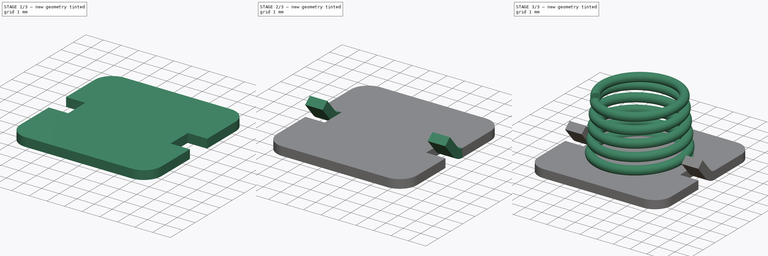
[diagram: build sequence overview — one tinted view per stage of 3, left to right]
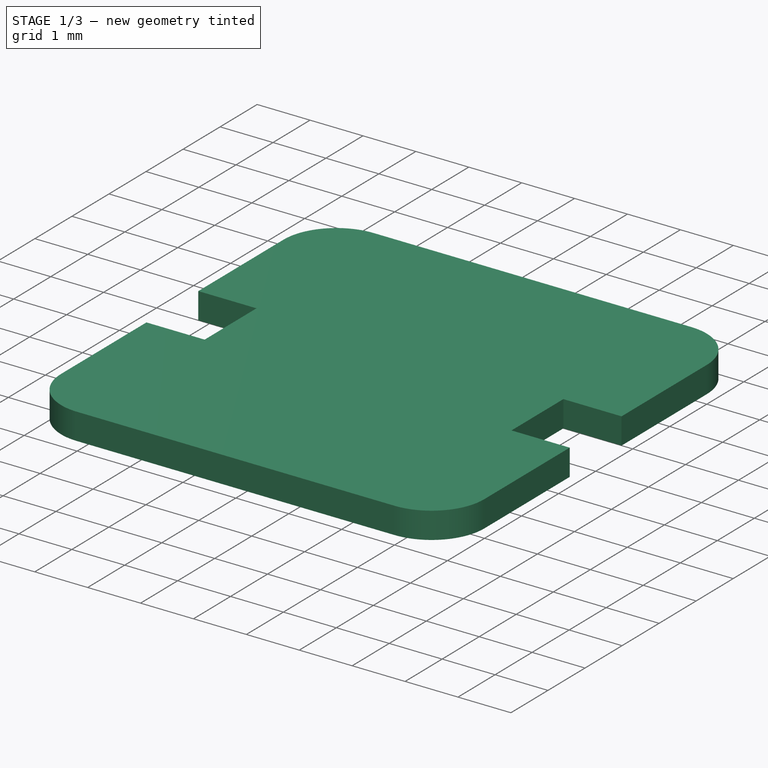
[diagram: stage 1 of 3 — iso view after this stage's code; geometry added in this stage tinted green]
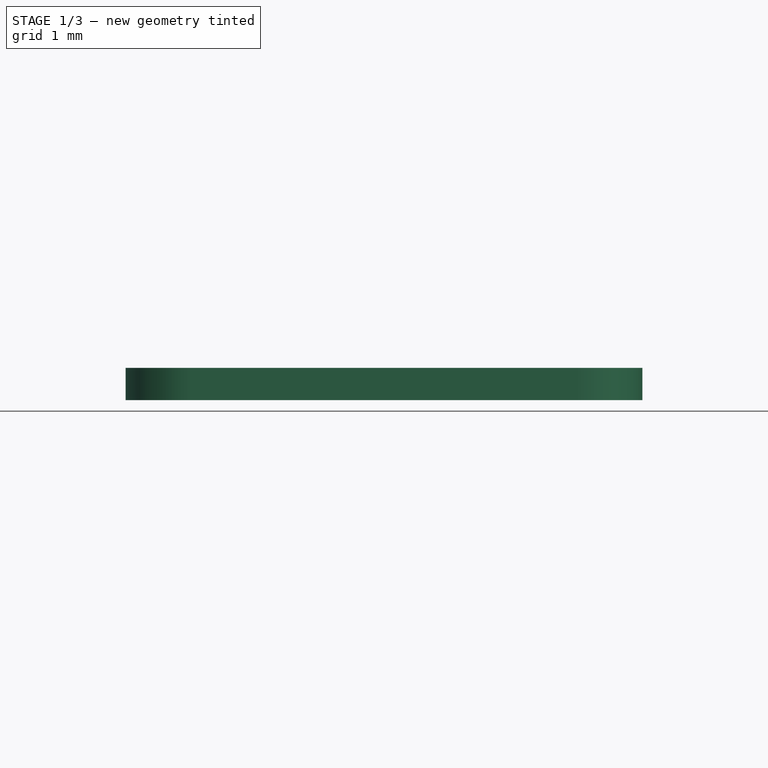
[diagram: stage 1 of 3 — front view after this stage's code; geometry added in this stage tinted green]
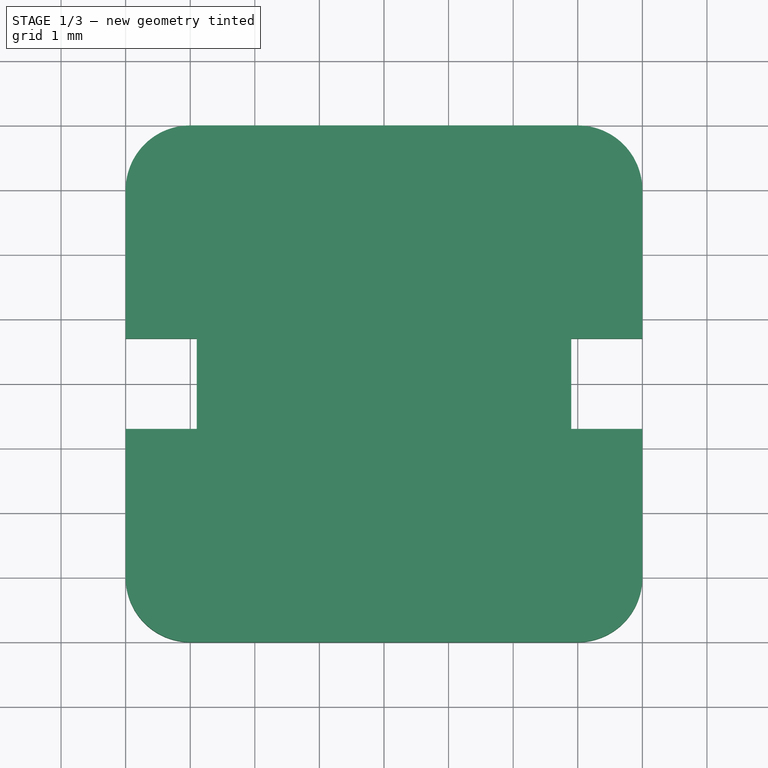
[diagram: stage 1 of 3 — top view after this stage's code; geometry added in this stage tinted green]
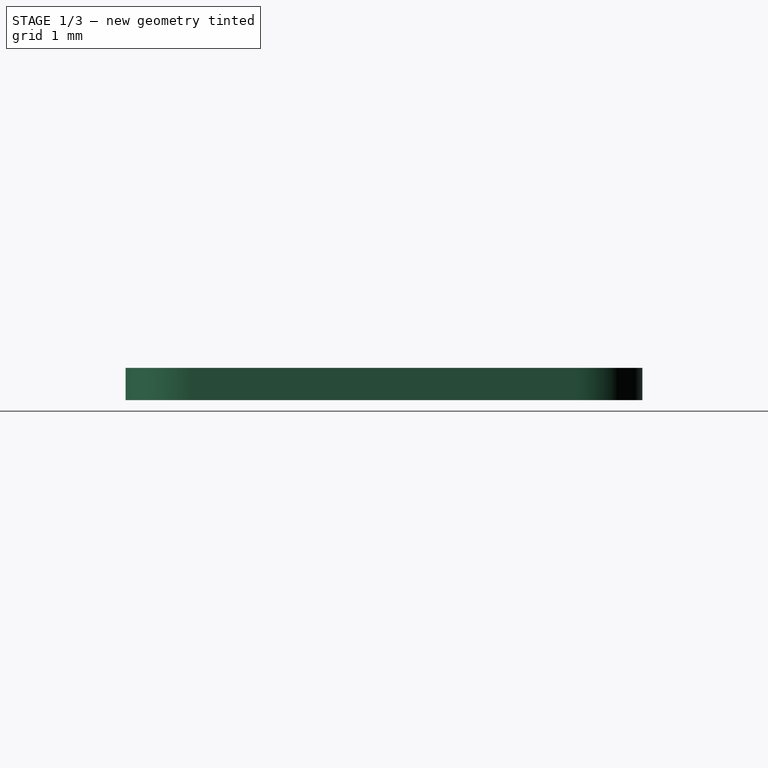
[diagram: stage 1 of 3 — right view after this stage's code; geometry added in this stage tinted green]
FCSTD DOCUMENT  (FreeCAD 0.19R24291 (Git))
Label: Battery_Contact_Spring
Comment: Keystone 5203, 'AAA' & 'N'  Male Battery Contact
License: Creative Commons Attribution-NonCommercial-ShareAlike
LicenseURL: http://creativecommons.org/licenses/by-nc-sa/4.0/
objects: Sketcher::SketchObject×4, PartDesign::Pad×2, PartDesign::CoordinateSystem×1, PartDesign::Fillet×1, PartDesign::Mirrored×1, PartDesign::AdditiveHelix×1, PartDesign::Revolution×1, PartDesign::Body×1, App::Part×1
note: 17 computed .brp shape members not serialized (recipe doc carries the construction recipe); baked Part::Feature solids carry a one-line shape summary decoded from their .brp

FEATURE [PartDesign::CoordinateSystem] LCS_0
  AttacherType = Attacher::AttachEngine3D
  MapMode = 2
  Support = -> [X_Axis]
FEATURE [Sketcher::SketchObject] Sketch
  FullyConstrained = true
  MapMode = 5
  Support = -> [XY_Plane001]
  sketch-geometry (14):
    g0: LineSegment StartX=0 StartY=-4 StartZ=0 EndX=4 EndY=-4 EndZ=0
    g1: LineSegment StartX=4 StartY=4 StartZ=0 EndX=0 EndY=4 EndZ=0
    g2: LineSegment StartX=0 StartY=-4 StartZ=0 EndX=-4 EndY=-4 EndZ=0
    g3: LineSegment StartX=-4 StartY=4 StartZ=0 EndX=0 EndY=4 EndZ=0
    g4: LineSegment StartX=4 StartY=4 StartZ=0 EndX=4 EndY=0.7 EndZ=0
    g5: LineSegment StartX=4 StartY=0.7 StartZ=0 EndX=2.9 EndY=0.7 EndZ=0
    g6: LineSegment StartX=2.9 StartY=0.7 StartZ=0 EndX=2.9 EndY=-0.7 EndZ=0
    g7: LineSegment StartX=2.9 StartY=-0.7 StartZ=0 EndX=4 EndY=-0.7 EndZ=0
    g8: LineSegment StartX=4 StartY=-0.7 StartZ=0 EndX=4 EndY=-4 EndZ=0
    g9: LineSegment StartX=-4 StartY=0.7 StartZ=0 EndX=-2.9 EndY=0.7 EndZ=0
    g10: LineSegment StartX=-4 StartY=4 StartZ=0 EndX=-4 EndY=0.7 EndZ=0
    g11: LineSegment StartX=-2.9 StartY=0.7 StartZ=0 EndX=-2.9 EndY=-0.7 EndZ=0
    g12: LineSegment StartX=-4 StartY=-0.7 StartZ=0 EndX=-4 EndY=-4 EndZ=0
    g13: LineSegment StartX=-2.9 StartY=-0.7 StartZ=0 EndX=-4 EndY=-0.7 EndZ=0
  constraints (38):
    c: PointOnObject(g0,g-2)
    c: Horizontal(g0)
    c: Horizontal(g1)
    c: DistanceY(g0) = -4
    c: Distance(g0) = 4
    c: Horizontal(g2)
    c: PointOnObject(g2,g-2)
    c: Symmetric(g3,g1,g-2)
    c: Coincident(g1,g4)
    c: Vertical(g4)
    c: Coincident(g4,g5)
    c: Coincident(g5,g6)
    c: Vertical(g6)
    c: Coincident(g6,g7)
    c: Coincident(g7,g8)
    c: Coincident(g8,g0)
    c: Horizontal(g5)
    c: Horizontal(g7)
    c: Symmetric(g7,g4,g-1)
    c: Distance(g1,g0) = 8
    c: Vertical(g8)
    c: Distance(g7,g1) = 4.7
    c: Distance(g5) = 1.1
    c: Coincident(g10,g9)
    c: Coincident(g9,g11)
    c: Vertical(g11)
    c: Coincident(g11,g13)
    c: Coincident(g13,g12)
    c: Horizontal(g13)
    c: Symmetric(g9,g5,g-2)
    c: Symmetric(g2,g0,g-2)
    c: Symmetric(g12,g7,g-2)
    c: Coincident(g12,g2)
    c: Symmetric(g9,g4,g-2)
    c: Coincident(g10,g3)
    c: Coincident(g3,g1)
    c: PointOnObject(g1,g-2)
    c: Distance(g6) = 1.4
FEATURE [PartDesign::Pad] Pad
  Direction = (1,1,1)
  Length = 0.5
  Length2 = 100
  Profile = -> Sketch
  Refine = true
  Type = 0
FEATURE [PartDesign::Fillet] Fillet
  Base = -> Pad [Edge14,Edge1,Edge33,Edge25]
  BaseFeature = -> Pad
  Radius = 1
  Refine = true
  SupportTransform = false
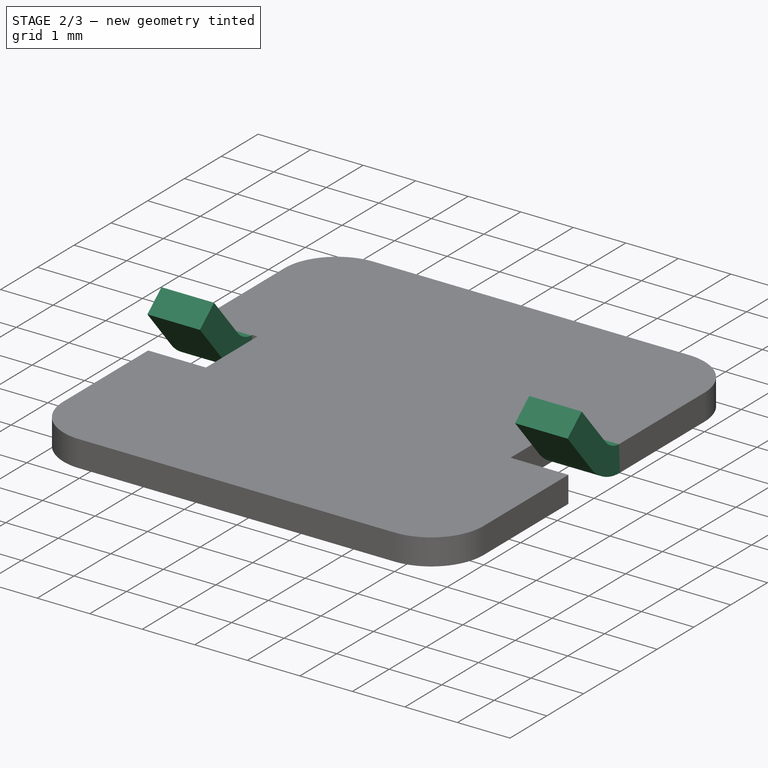
[diagram: stage 2 of 3 — iso view after this stage's code; geometry added in this stage tinted green]
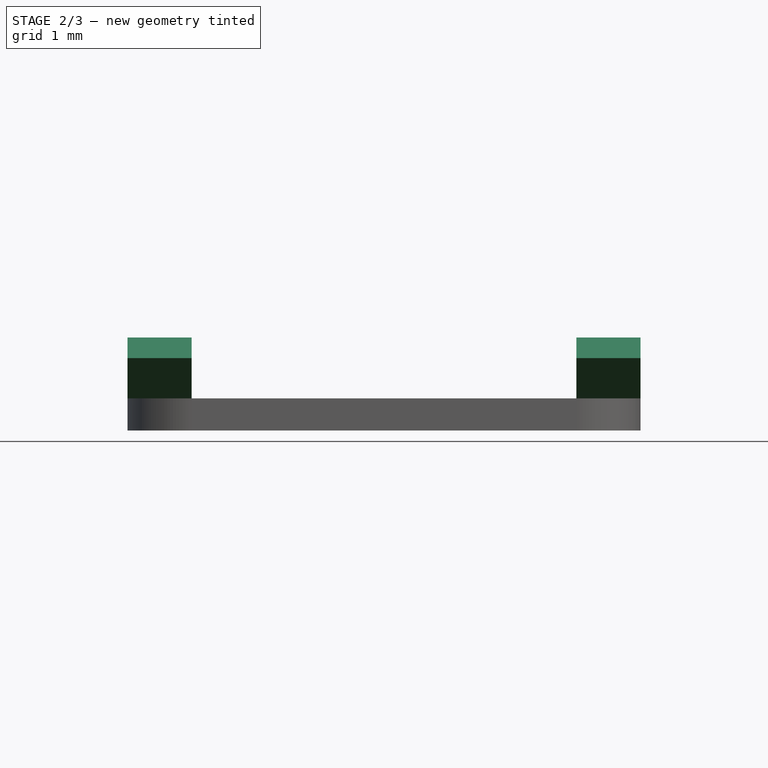
[diagram: stage 2 of 3 — front view after this stage's code; geometry added in this stage tinted green]
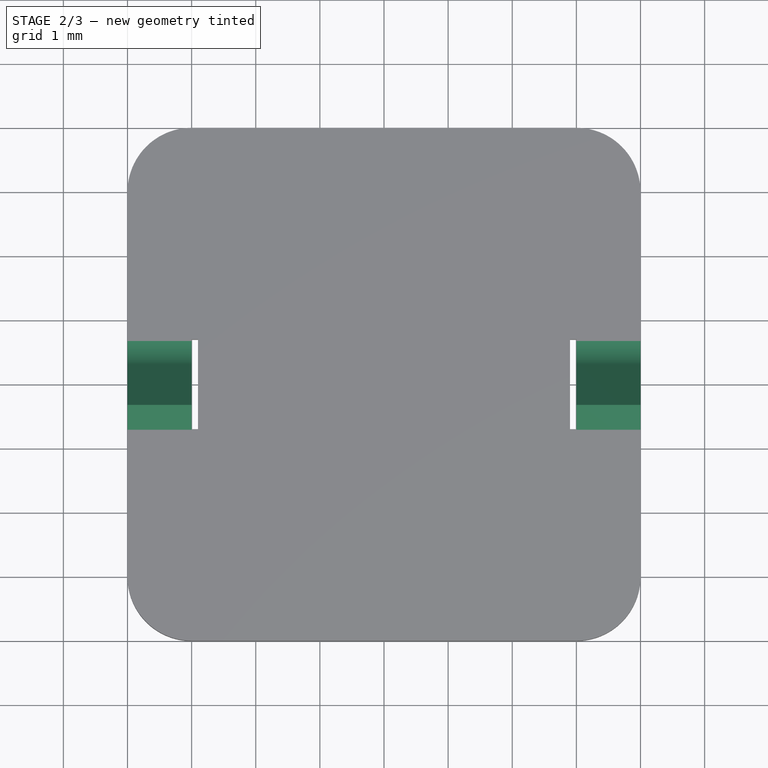
[diagram: stage 2 of 3 — top view after this stage's code; geometry added in this stage tinted green]
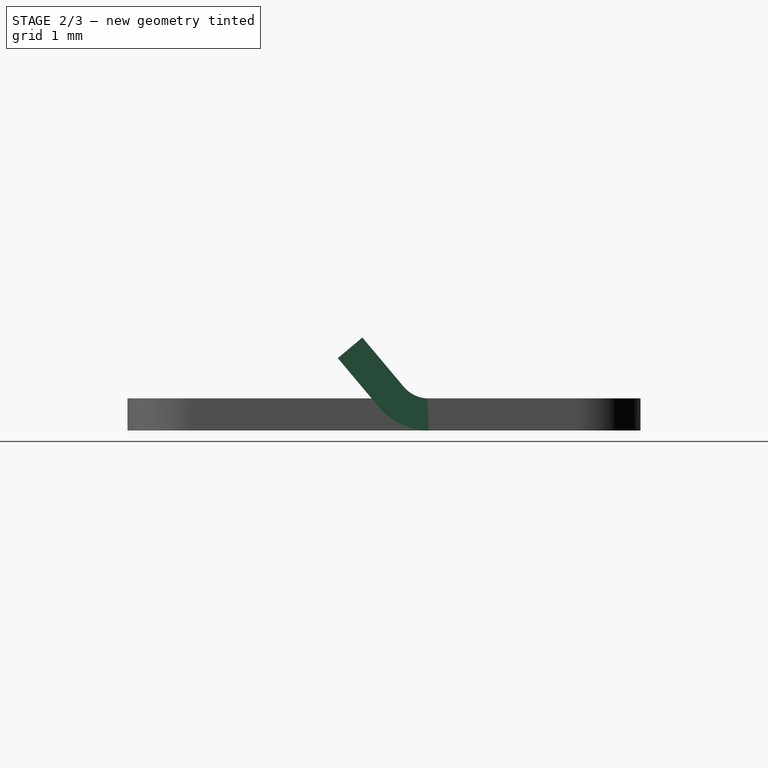
[diagram: stage 2 of 3 — right view after this stage's code; geometry added in this stage tinted green]
FEATURE [Sketcher::SketchObject] Sketch004
  AttachmentOffset = pos=(0,0,4) rot=(0,0,1;0rad)
  FullyConstrained = true
  MapMode = 5
  Placement = pos=(4,-9e-16,9e-16) rot=(0.57735,0.57735,0.57735;2.0944rad)
  Support = -> [YZ_Plane001]
  sketch-geometry (8):
    g0: LineSegment StartX=2 StartY=0 StartZ=0 EndX=2 EndY=0.5 EndZ=0
    g1: LineSegment StartX=2 StartY=0.5 StartZ=0 EndX=0.7 EndY=0.5 EndZ=0
    g2: ArcOfCircle CenterX=0.7 CenterY=1.01498 CenterZ=0 NormalX=0 NormalY=0 NormalZ=1 AngleXU=0 Radius=0.514975 StartAngle=3.83972 EndAngle=4.71239
    g3: LineSegment StartX=0.305506 StartY=0.683956 StartZ=0 EndX=-0.337282 EndY=1.45 EndZ=0
    g4: LineSegment StartX=-0.337282 StartY=1.45 StartZ=0 EndX=-0.720304 EndY=1.12861 EndZ=0
    g5: LineSegment StartX=-0.720304 StartY=1.12861 StartZ=0 EndX=-0.0775162 EndY=0.362562 EndZ=0
    g6: ArcOfCircle CenterX=0.7 CenterY=1.01498 CenterZ=0 NormalX=0 NormalY=0 NormalZ=1 AngleXU=0 Radius=1.01498 StartAngle=3.83972 EndAngle=4.71239
    g7: LineSegment StartX=0.7 StartY=0 StartZ=0 EndX=2 EndY=0 EndZ=0
  constraints (21):
    c: PointOnObject(g0,g-1)
    c: Coincident(g0,g1)
    c: Horizontal(g1)
    c: Tangent(g1,g2) = 1.5708
    c: Tangent(g2,g3) = 1.5708
    c: Coincident(g3,g4)
    c: Coincident(g4,g5)
    c: Tangent(g5,g6) = -1.5708
    c: PointOnObject(g6,g-1)
    c: Tangent(g6,g7) = -1.5708
    c: Coincident(g7,g0)
    c: Vertical(g0)
    c: Coincident(g2,g6)
    c: Perpendicular(g3,g4)
    c: Perpendicular(g4,g5)
    c: DistanceX(g6) = 0.7
    c: Distance(g0) = 0.5
    c: DistanceY(g3) = 1.45
    c: Angle(g5,g-1) = 0.872665
    c: DistanceX(g0) = 2
    c: Distance(g3) = 1
FEATURE [PartDesign::Pad] Pad001
  BaseFeature = -> Fillet
  Direction = (1,1,1)
  Length = 1
  Length2 = 100
  Profile = -> Sketch004
  Refine = true
  Reversed = true
  Type = 0
FEATURE [PartDesign::Mirrored] Mirrored
  BaseFeature = -> Pad001
  MirrorPlane = -> YZ_Plane001
  Originals = -> [Pad001]
  Refine = true
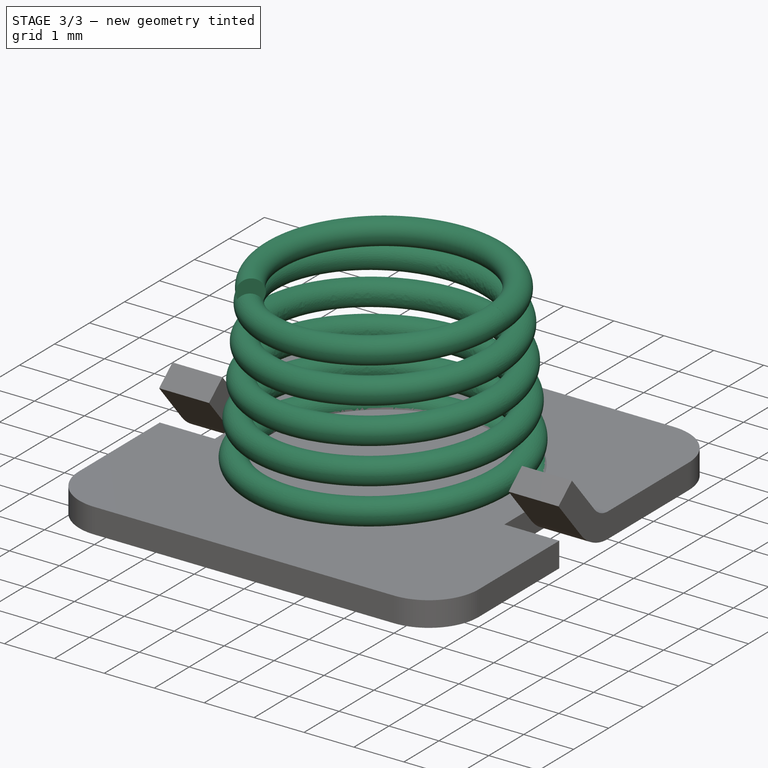
[diagram: stage 3 of 3 — iso view after this stage's code; geometry added in this stage tinted green]
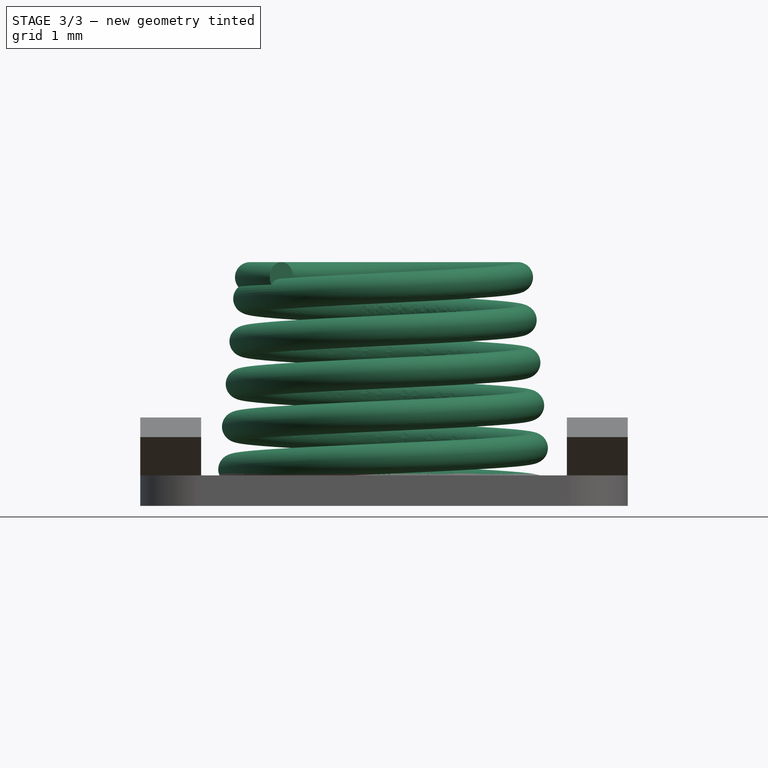
[diagram: stage 3 of 3 — front view after this stage's code; geometry added in this stage tinted green]
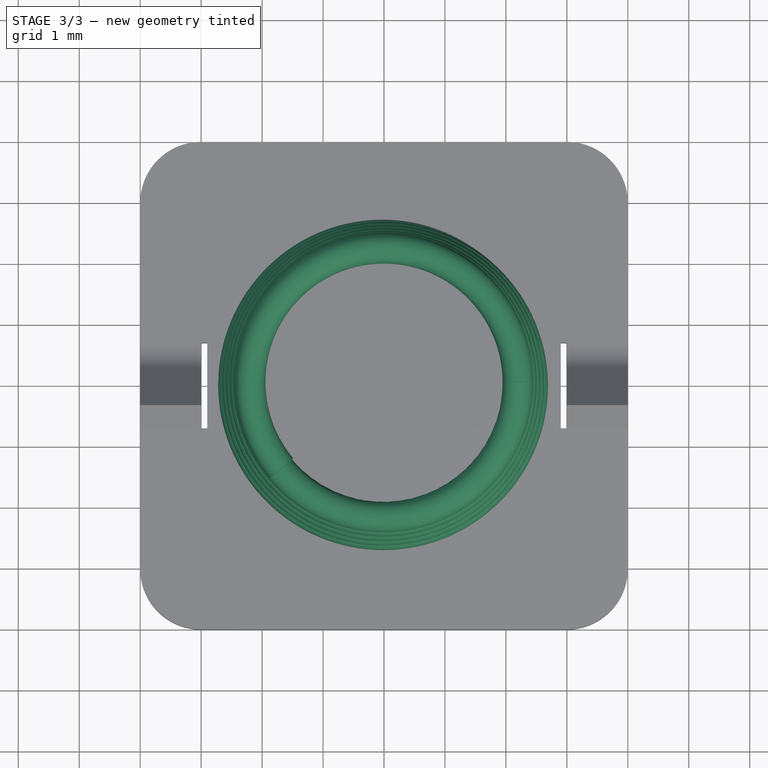
[diagram: stage 3 of 3 — top view after this stage's code; geometry added in this stage tinted green]
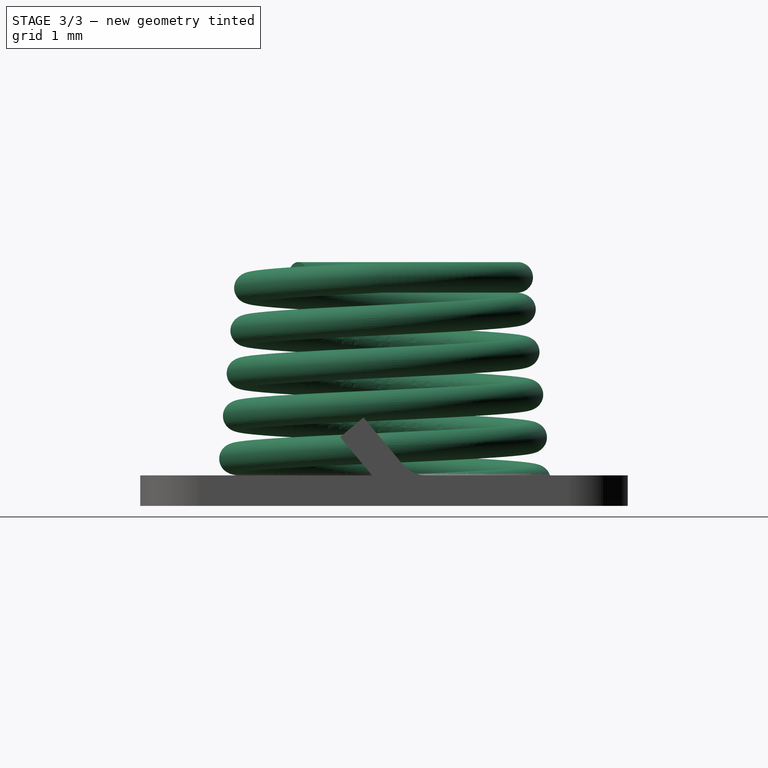
[diagram: stage 3 of 3 — right view after this stage's code; geometry added in this stage tinted green]
FEATURE [Sketcher::SketchObject] Sketch005
  FullyConstrained = true
  MapMode = 5
  Placement = pos=(0,0,0) rot=(1,0,0;1.5708rad)
  Support = -> [XZ_Plane001]
  sketch-geometry (1):
    g0: Circle CenterX=2.5 CenterY=0.25 CenterZ=0 NormalX=0 NormalY=0 NormalZ=1 AngleXU=0 Radius=0.25
  constraints (3):
    c: Radius(g0) = 0.25
    c: DistanceX(g0) = 2.5
    c: DistanceY(g0) = 0.25
FEATURE [PartDesign::AdditiveHelix] AdditiveHelix
  Angle = -5
  Axis = (0,-2e-16,1)
  Base = (0,0,0)
  BaseFeature = -> Mirrored
  HasBeenEdited = true
  Height = 3.5
  LeftHanded = false
  Mode = 2
  Outside = false
  Pitch = 0.7
  Profile = -> Sketch005
  ReferenceAxis = -> Sketch005 [V_Axis]
  Refine = true
  Turns = 5
FEATURE [Sketcher::SketchObject] Sketch006
  FullyConstrained = true
  MapMode = 5
  Placement = pos=(0,0,0) rot=(1,0,0;1.5708rad)
  Support = -> [XZ_Plane001]
  expr: Constraints[2] = AdditiveHelix.Height + 0.25mm
  expr: Constraints[1] = 2.5mm - AdditiveHelix.Height * sin(-AdditiveHelix.Angle)
  sketch-geometry (1):
    g0: Circle CenterX=2.19495 CenterY=3.75 CenterZ=0 NormalX=0 NormalY=0 NormalZ=1 AngleXU=0 Radius=0.25
  constraints (3):
    c: Radius(g0) = 0.25
    c: DistanceX(g0) = 2.19495
    c: DistanceY(g0) = 3.75
FEATURE [PartDesign::Revolution] Revolution
  Angle = 220
  Axis = (0,-2e-16,1)
  Base = (0,0,0)
  BaseFeature = -> AdditiveHelix
  Profile = -> Sketch006
  ReferenceAxis = -> Sketch006 [V_Axis]
  Refine = true
FEATURE [PartDesign::Body] Body
  Group = -> [Sketch,Pad,Fillet,Sketch004,Pad001,Mirrored,Sketch005,AdditiveHelix,Sketch006,Revolution]
  Origin = -> Origin001
  Tip = -> Revolution
FEATURE [App::Part] Flat_Contact  label="Spring_Contact"
  Group = -> [LCS_0,Body]
  Origin = -> Origin
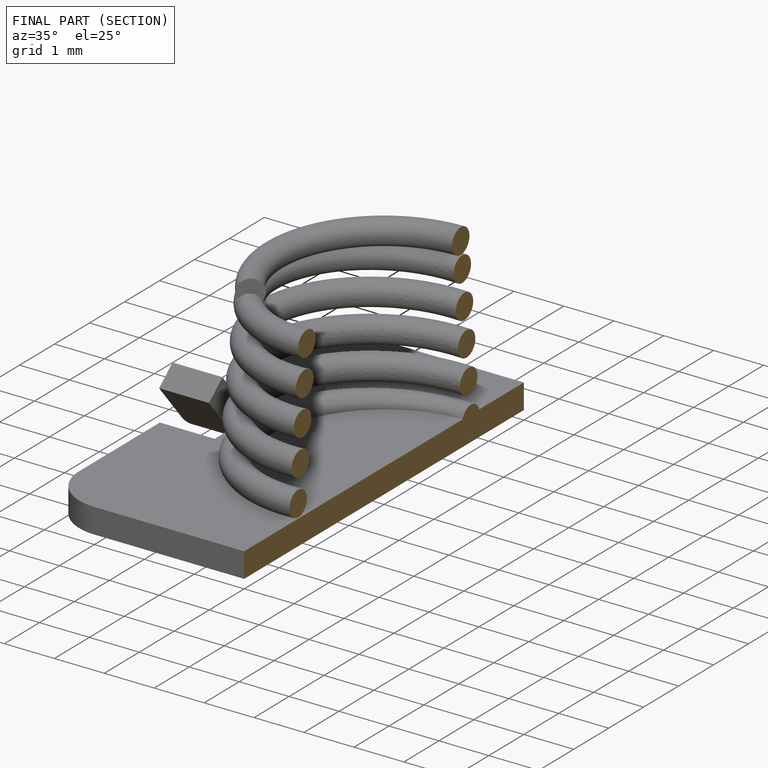
[diagram: finished part — half-section view (interior)]
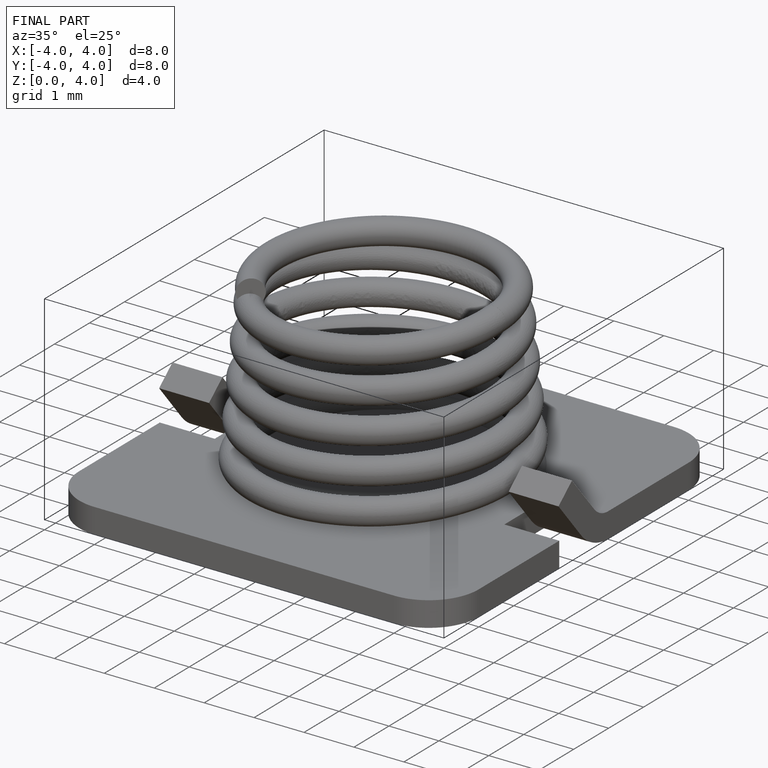
[diagram: finished part — iso view with bounding-box wireframe]
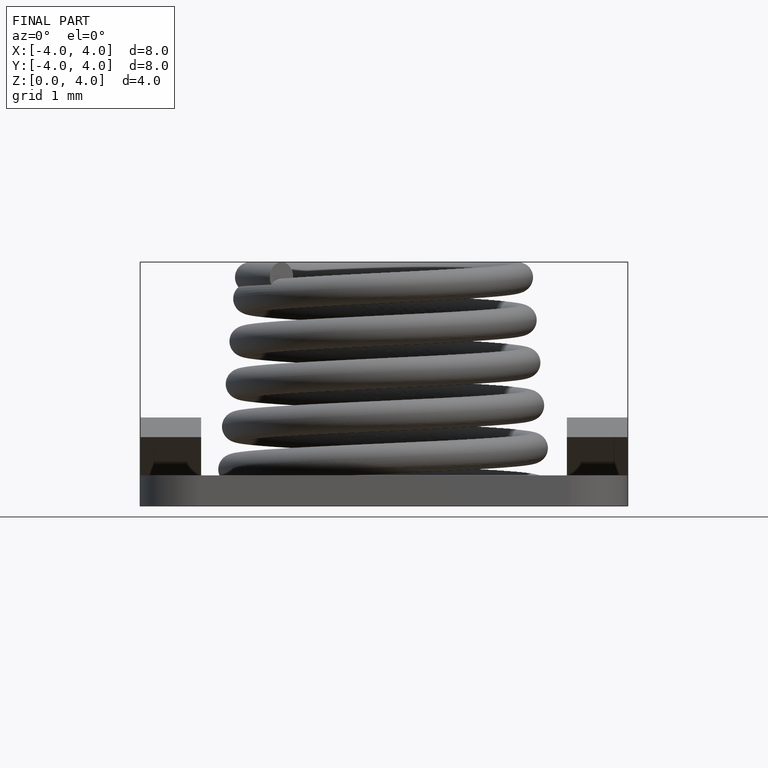
[diagram: finished part — front view with bounding-box wireframe]
